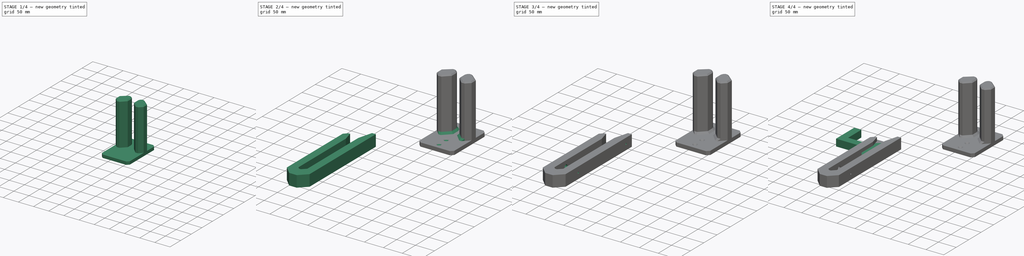
[diagram: build sequence overview — one tinted view per stage of 4, left to right]
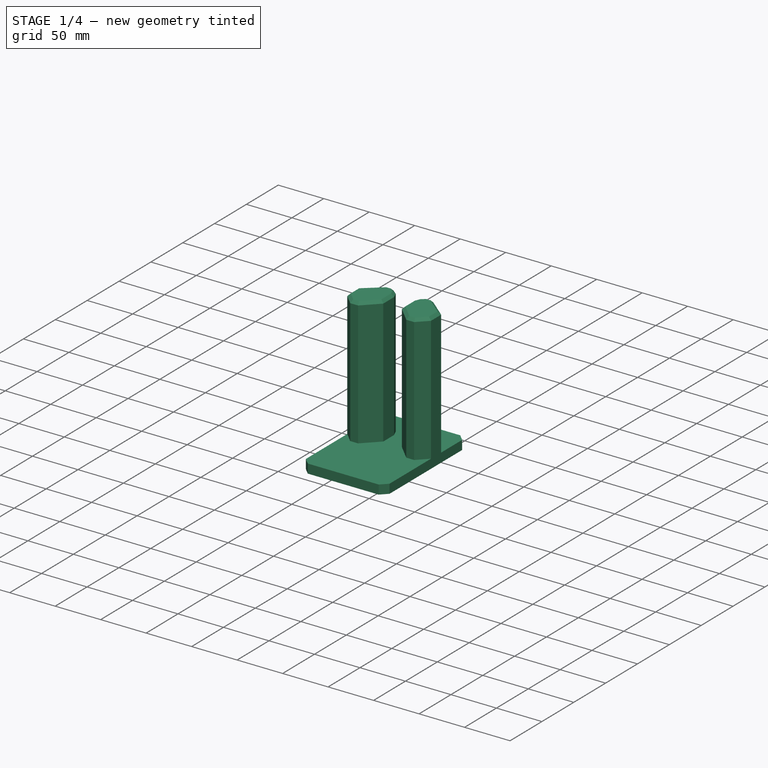
[diagram: stage 1 of 4 — iso view after this stage's code; geometry added in this stage tinted green]
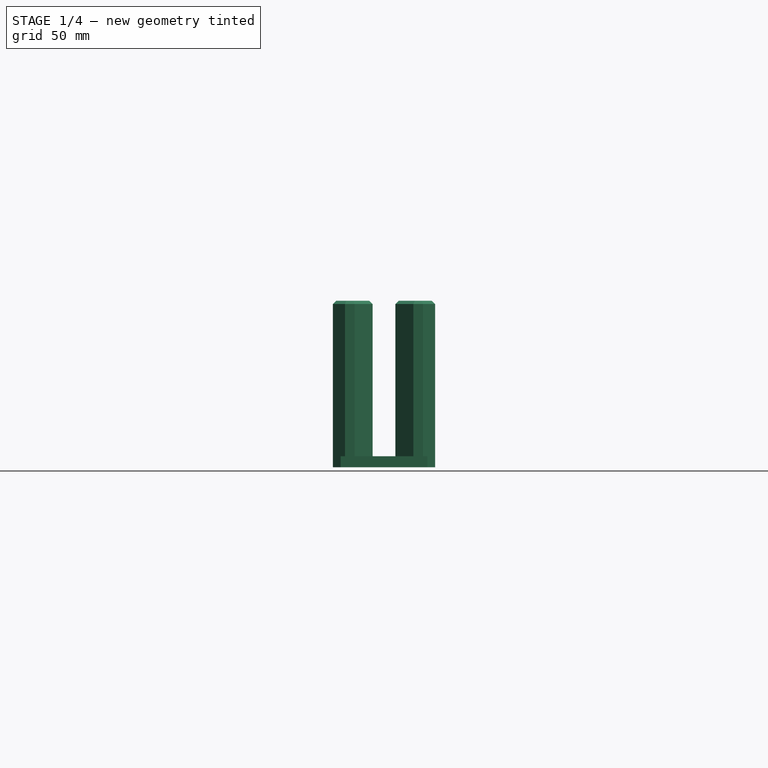
[diagram: stage 1 of 4 — front view after this stage's code; geometry added in this stage tinted green]
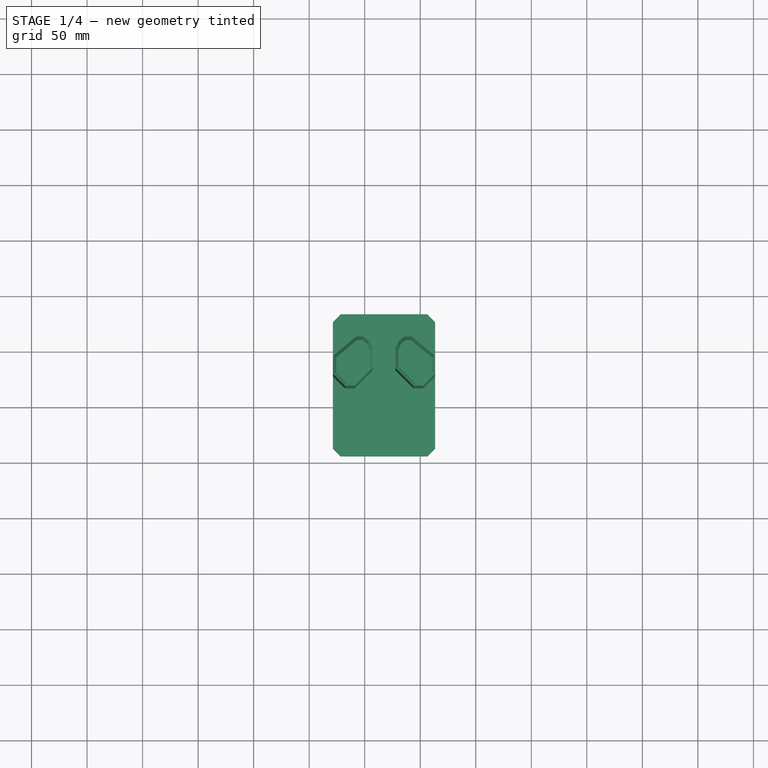
[diagram: stage 1 of 4 — top view after this stage's code; geometry added in this stage tinted green]
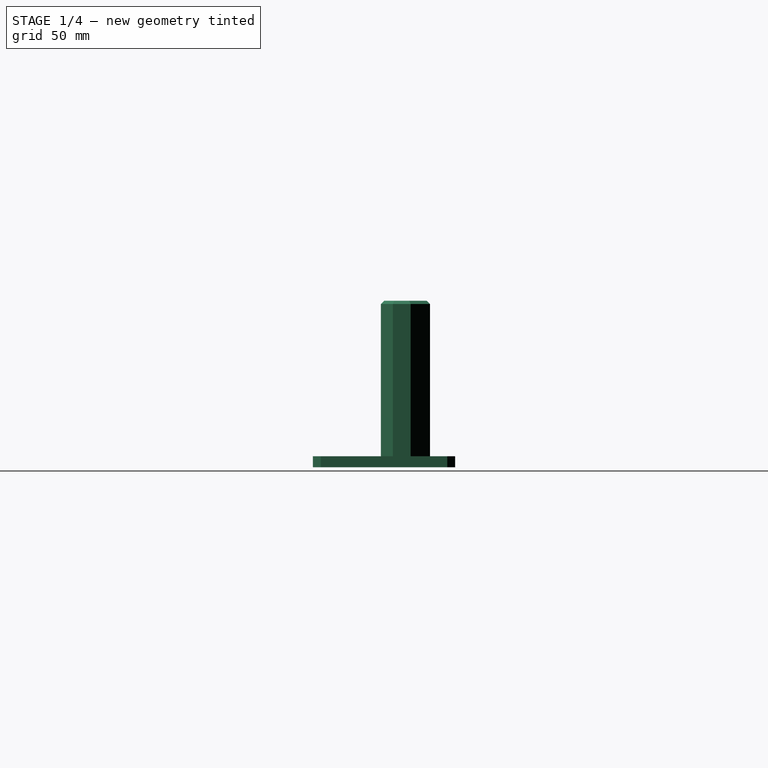
[diagram: stage 1 of 4 — right view after this stage's code; geometry added in this stage tinted green]
FCSTD DOCUMENT  (FreeCAD 0.19R24267 +99 (Git))
Label: garage_hooks
License: All rights reserved
LicenseURL: http://en.wikipedia.org/wiki/All_rights_reserved
objects: Sketcher::SketchObject×10, PartDesign::Plane×7, PartDesign::Hole×6, PartDesign::Pad×4, PartDesign::Chamfer×4, PartDesign::Body×3
note: 48 computed .brp shape members not serialized (recipe doc carries the construction recipe); baked Part::Feature solids carry a one-line shape summary decoded from their .brp

FEATURE [PartDesign::Body] Body001  label="Board_hook"
  Group = -> [Sketch003,Pad001,DatumPlane002,Sketch004,Hole002,DatumPlane003,Sketch005,Hole003,DatumPlane004,Sketch006,Hole004]
  Origin = -> Origin001
  Tip = -> Hole004
FEATURE [Sketcher::SketchObject] Sketch007
  FullyConstrained = true
  MapMode = 5
  Support = -> [XY_Plane002]
  sketch-geometry (4):
    g0: LineSegment StartX=71.38 StartY=183.99 StartZ=0 EndX=163.38 EndY=183.99 EndZ=0
    g1: LineSegment StartX=163.38 StartY=183.99 StartZ=0 EndX=163.38 EndY=55.99 EndZ=0
    g2: LineSegment StartX=163.38 StartY=55.99 StartZ=0 EndX=71.38 EndY=55.99 EndZ=0
    g3: LineSegment StartX=71.38 StartY=55.99 StartZ=0 EndX=71.38 EndY=183.99 EndZ=0
  constraints (12):
    c: Coincident(g0,g1)
    c: Coincident(g1,g2)
    c: Coincident(g2,g3)
    c: Coincident(g3,g0)
    c: Horizontal(g0)
    c: Horizontal(g2)
    c: Vertical(g1)
    c: Vertical(g3)
    c: DistanceX(g0,g0) = 92
    c: DistanceY(g1,g1) = 128
    c: DistanceX(g-1,g2) = 71.38
    c: DistanceY(g-1,g2) = 55.99
FEATURE [PartDesign::Pad] Pad002  label="Ski_hanger_baseplate"
  Direction = (1,1,1)
  Length = 10
  Length2 = 100
  Profile = -> Sketch007
  Type = 0
FEATURE [PartDesign::Chamfer] Chamfer001
  Angle = 45
  Base = -> Pad002 [Edge1,Edge2,Edge8,Edge5]
  BaseFeature = -> Pad002
  ChamferType = 0
  FlipDirection = false
  Size = 7
  Size2 = 1
  SupportTransform = false
FEATURE [PartDesign::Plane] DatumPlane005
  Length = 228.064
  MapMode = 5
  Placement = pos=(0,0,10) rot=(0,0,1;0rad)
  ResizeMode = 0
  Support = -> [Chamfer001]
  Width = 248.674
FEATURE [Sketcher::SketchObject] Sketch008
  FullyConstrained = true
  MapMode = 5
  Placement = pos=(0,0,10) rot=(0,0,1;0rad)
  Support = -> [DatumPlane005]
  sketch-geometry (18):
    g0: LineSegment StartX=71.38 StartY=128 StartZ=0 EndX=71.38 EndY=144 EndZ=0
    g1: LineSegment StartX=71.38 StartY=144 StartZ=0 EndX=92.0632 EndY=161.355 EndZ=0
    g2: LineSegment StartX=92.0632 StartY=161.355 StartZ=0 EndX=99.0632 EndY=161.355 EndZ=0
    g3: LineSegment StartX=99.0632 StartY=161.355 StartZ=0 EndX=104.426 EndY=156.856 EndZ=0
    g4: LineSegment StartX=104.426 StartY=156.856 StartZ=0 EndX=107.161 EndY=150.412 EndZ=0
    g5: LineSegment StartX=107.161 StartY=150.412 StartZ=0 EndX=107.161 EndY=133.412 EndZ=0
    g6: LineSegment StartX=107.161 StartY=133.412 StartZ=0 EndX=90.8972 EndY=117.149 EndZ=0
    g7: LineSegment StartX=90.8972 StartY=117.149 StartZ=0 EndX=82.2312 EndY=117.149 EndZ=0
    g8: LineSegment StartX=71.38 StartY=128 StartZ=0 EndX=82.2312 EndY=117.149 EndZ=0
    g9: LineSegment StartX=163.38 StartY=128 StartZ=0 EndX=163.38 EndY=144 EndZ=0
    g10: LineSegment StartX=163.38 StartY=144 StartZ=0 EndX=142.697 EndY=161.355 EndZ=0
    g11: LineSegment StartX=142.697 StartY=161.355 StartZ=0 EndX=135.697 EndY=161.355 EndZ=0
    g12: LineSegment StartX=135.697 StartY=161.355 StartZ=0 EndX=130.334 EndY=156.856 EndZ=0
    g13: LineSegment StartX=130.334 StartY=156.856 StartZ=0 EndX=127.599 EndY=150.412 EndZ=0
    g14: LineSegment StartX=127.599 StartY=150.412 StartZ=0 EndX=127.599 EndY=133.412 EndZ=0
    g15: LineSegment StartX=127.599 StartY=133.412 StartZ=0 EndX=143.863 EndY=117.149 EndZ=0
    g16: LineSegment StartX=143.863 StartY=117.149 StartZ=0 EndX=152.529 EndY=117.149 EndZ=0
    g17: LineSegment StartX=152.529 StartY=117.149 StartZ=0 EndX=163.38 EndY=128 EndZ=0
  constraints (54):
    c: Vertical(g0)
    c: Coincident(g1,g0)
    c: Angle(g0,g1) = 2.26893
    c: DistanceX(g-1,g0) = 71.38
    c: DistanceY(g-1,g0) = 128
    c: DistanceY(g0,g0) = 16
    c: Coincident(g2,g1)
    c: Horizontal(g2)
    c: Distance(g1) = 27
    c: Distance(g2) = 7
    c: Coincident(g3,g2)
    c: Angle(g2,g3) = 2.44346
    c: Distance(g3) = 7
    c: Coincident(g4,g3)
    c: Distance(g4) = 7
    c: Angle(g3,g4) = 2.67035
    c: Coincident(g5,g4)
    c: Vertical(g5)
    c: Distance(g5) = 17
    c: Coincident(g6,g5)
    c: Distance(g6) = 23
    c: Angle(g5,g6) = 2.35619
    c: Coincident(g7,g6)
    c: Horizontal(g7)
    c: Coincident(g8,g0)
    c: Coincident(g8,g7)
    c: Angle(g8,g0) = 2.35619
    c: Vertical(g9)
    c: DistanceY(g-1,g9) = 128
    c: Distance(g9) = 16
    c: DistanceX(g0,g9) = 92
    c: Coincident(g10,g9)
    c: Coincident(g11,g10)
    c: Horizontal(g11)
    c: Coincident(g12,g11)
    c: Coincident(g13,g12)
    c: Coincident(g14,g13)
    c: Vertical(g14)
    c: Coincident(g15,g14)
    c: Coincident(g16,g15)
    c: Horizontal(g16)
    c: Coincident(g17,g16)
    c: Coincident(g17,g9)
    c: Angle(g10,g9) = 2.26893
    c: Distance(g10) = 27
    c: Distance(g11) = 7
    c: Distance(g12) = 7
    c: Distance(g13) = 7
    c: Angle(g12,g11) = 2.44346
    c: Angle(g13,g12) = 2.67035
    c: Distance(g14) = 17
    c: Angle(g15,g14) = 2.35619
    c: Angle(g9,g17) = 2.35619
    c: Distance(g15) = 23
FEATURE [PartDesign::Pad] Pad003  label="Ski_hanger_grips"
  BaseFeature = -> Chamfer001
  Direction = (1,1,1)
  Length = 140
  Length2 = 100
  Profile = -> Sketch008
  Type = 0
FEATURE [PartDesign::Chamfer] Chamfer002
  Angle = 45
  Base = -> Pad003 [Edge47,Edge49,Edge51,Edge53,Edge55,Edge57,Edge59,Edge61,Edge79,Edge76,Edge78,Edge80,Edge64,Edge66,Edge68,Edge70,Edge72,Edge74]
  BaseFeature = -> Pad003
  ChamferType = 0
  FlipDirection = false
  Size = 3
  Size2 = 1
  SupportTransform = false
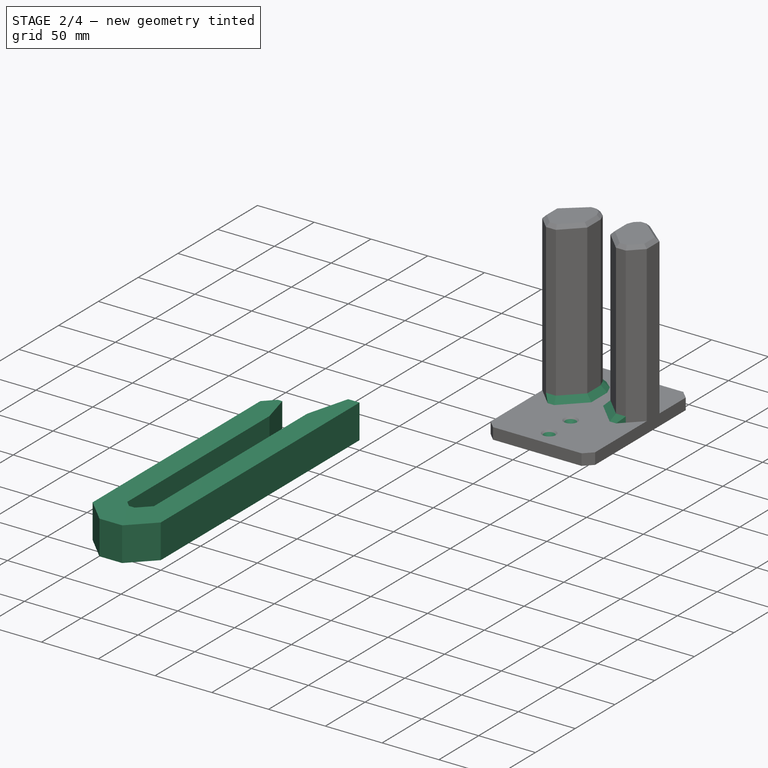
[diagram: stage 2 of 4 — iso view after this stage's code; geometry added in this stage tinted green]
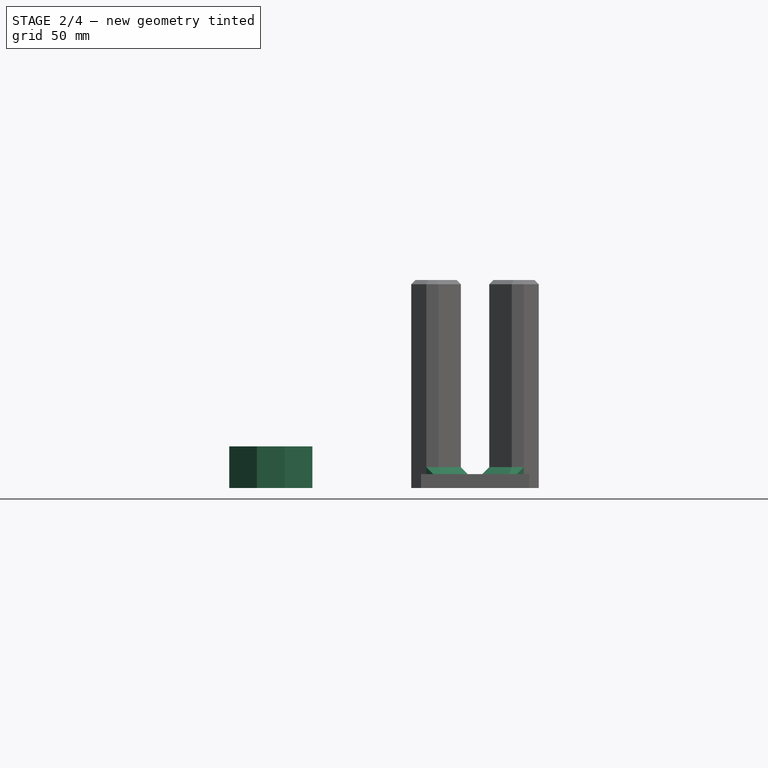
[diagram: stage 2 of 4 — front view after this stage's code; geometry added in this stage tinted green]
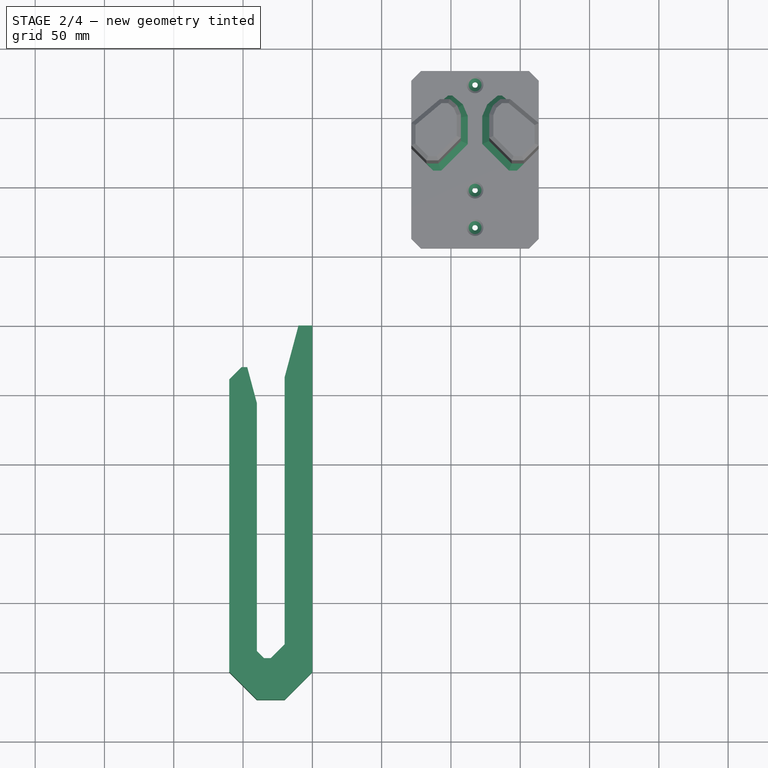
[diagram: stage 2 of 4 — top view after this stage's code; geometry added in this stage tinted green]
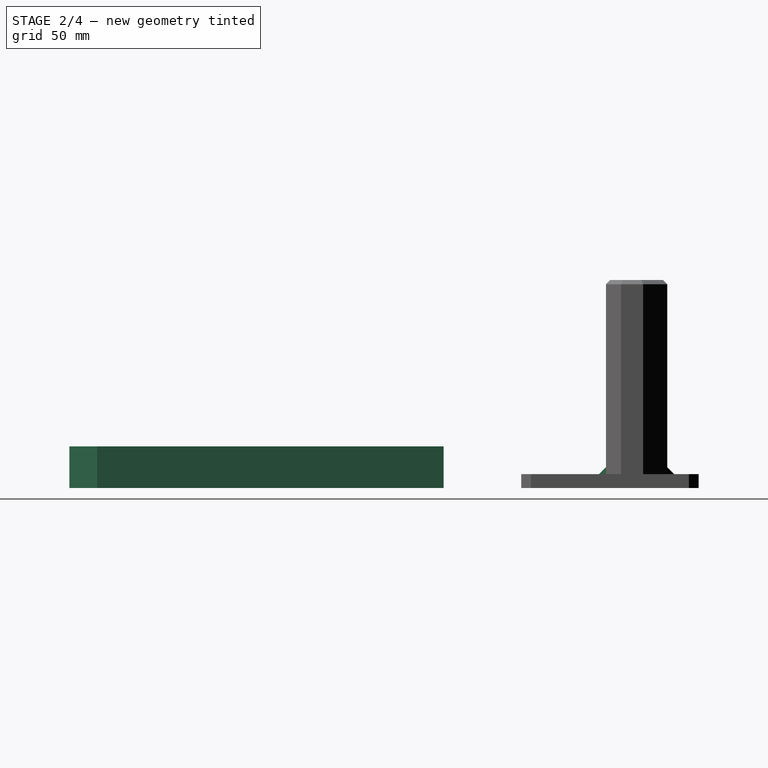
[diagram: stage 2 of 4 — right view after this stage's code; geometry added in this stage tinted green]
FEATURE [PartDesign::Body] Body  label="Ladder_hook"
  Group = -> [Sketch,Pad,DatumPlane,Sketch001,Hole,DatumPlane001,Sketch002,Hole001,Chamfer]
  Origin = -> Origin
  Tip = -> Chamfer
FEATURE [Sketcher::SketchObject] Sketch003
  FullyConstrained = true
  MapMode = 5
  Support = -> [XY_Plane001]
  sketch-geometry (15):
    g0: LineSegment StartX=-10 StartY=0 StartZ=0 EndX=0 EndY=0 EndZ=0
    g1: LineSegment StartX=0 StartY=0 StartZ=0 EndX=0 EndY=-250 EndZ=0
    g2: LineSegment StartX=-20 StartY=-230 StartZ=0 EndX=-20 EndY=-37.3205 EndZ=0
    g3: LineSegment StartX=-20 StartY=-270 StartZ=0 EndX=-40 EndY=-270 EndZ=0
    g4: LineSegment StartX=-51 StartY=-30 StartZ=0 EndX=-47 EndY=-30 EndZ=0
    g5: LineSegment StartX=-40 StartY=-56.1244 StartZ=0 EndX=-40 EndY=-235 EndZ=0
    g6: LineSegment StartX=-60 StartY=-250 StartZ=0 EndX=-60 EndY=-39 EndZ=0
    g7: LineSegment StartX=-40 StartY=-235 StartZ=0 EndX=-35 EndY=-240 EndZ=0
    g8: LineSegment StartX=-30 StartY=-240 StartZ=0 EndX=-20 EndY=-230 EndZ=0
    g9: LineSegment StartX=-20 StartY=-270 StartZ=0 EndX=0 EndY=-250 EndZ=0
    g10: LineSegment StartX=-60 StartY=-250 StartZ=0 EndX=-40 EndY=-270 EndZ=0
    g11: LineSegment StartX=-40 StartY=-56.1244 StartZ=0 EndX=-47 EndY=-30 EndZ=0
    g12: LineSegment StartX=-60 StartY=-39 StartZ=0 EndX=-51 EndY=-30 EndZ=0
    g13: LineSegment StartX=-20 StartY=-37.3205 StartZ=0 EndX=-10 EndY=0 EndZ=0
    g14: LineSegment StartX=-35 StartY=-240 StartZ=0 EndX=-30 EndY=-240 EndZ=0
  constraints (44):
    c: Coincident(g0,g1)
    c: Horizontal(g0)
    c: Vertical(g1)
    c: Vertical(g2)
    c: Horizontal(g3)
    c: Horizontal(g4)
    c: Vertical(g5)
    c: Vertical(g6)
    c: Coincident(g7,g5)
    c: Coincident(g8,g2)
    c: Coincident(g9,g3)
    c: Coincident(g9,g1)
    c: Coincident(g10,g6)
    c: Coincident(g10,g3)
    c: Coincident(g11,g5)
    c: Coincident(g11,g4)
    c: Coincident(g12,g6)
    c: Coincident(g12,g4)
    c: Coincident(g13,g2)
    c: Coincident(g13,g0)
    c: Angle(g2,g8) = 2.35619
    c: Angle(g7,g5) = 2.35619
    c: Coincident(g14,g7)
    c: Coincident(g14,g8)
    c: Angle(g1,g9) = 2.35619
    c: Angle(g10,g6) = 2.35619
    c: Angle(g6,g12) = 2.35619
    c: Angle(g11,g5) = 2.87979
    c: Angle(g2,g13) = 2.87979
    c: DistanceY(g1,g1) = 250
    c: DistanceY(g9,g9) = 20
    c: Distance(g2,g1) = 20
    c: Distance(g5,g6) = 20
    c: DistanceX(g12,g12) = 9
    c: DistanceX(g11,g11) = 7
    c: DistanceX(g13,g13) = 10
    c: Horizontal(g14)
    c: DistanceY(g10,g10) = 20
    c: DistanceX(g5,g2) = 20
    c: DistanceY(g8,g8) = 10
    c: DistanceY(g7,g7) = 5
    c: Coincident(g0,g-1)
    c: Distance(g8,g3) = 30
    c: Distance(g6,g4) = 220
FEATURE [PartDesign::Pad] Pad001  label="Board_hook_pad"
  Direction = (1,1,1)
  Length = 30
  Length2 = 100
  Profile = -> Sketch003
  Type = 0
FEATURE [PartDesign::Chamfer] Chamfer003
  Angle = 45
  Base = -> Chamfer002 [Edge18,Edge17,Edge27,Edge26,Edge16,Edge28,Edge13,Edge14,Edge29,Edge30,Edge31,Edge15]
  BaseFeature = -> Chamfer002
  ChamferType = 0
  FlipDirection = false
  Size = 5
  Size2 = 1
  SupportTransform = false
FEATURE [PartDesign::Plane] DatumPlane006
  Length = 228.064
  MapMode = 5
  Placement = pos=(0,0,10) rot=(0,0,1;0rad)
  ResizeMode = 0
  Support = -> [Chamfer001]
  Width = 248.674
FEATURE [Sketcher::SketchObject] Sketch009
  FullyConstrained = true
  MapMode = 5
  Placement = pos=(0,0,10) rot=(0,0,1;0rad)
  Support = -> [DatumPlane006]
  expr: Constraints[1] = 117.38mm
  sketch-geometry (3):
    g0: Circle CenterX=117.38 CenterY=174 CenterZ=0 NormalX=0 NormalY=0 NormalZ=1 AngleXU=0 Radius=3
    g1: Circle CenterX=117.38 CenterY=98 CenterZ=0 NormalX=0 NormalY=0 NormalZ=1 AngleXU=0 Radius=3
    g2: Circle CenterX=117.38 CenterY=71 CenterZ=0 NormalX=0 NormalY=0 NormalZ=1 AngleXU=0 Radius=3
  constraints (9):
    c: DistanceX(g-1,g2) = 117.38
    c: DistanceX(g-1,g1) = 117.38
    c: DistanceX(g-1,g0) = 117.38
    c: DistanceY(g-1,g2) = 71
    c: DistanceY(g-1,g1) = 98
    c: DistanceY(g-1,g0) = 174
    c: Radius(g2) = 3
    c: Radius(g1) = 3
    c: Radius(g0) = 3
FEATURE [PartDesign::Hole] Hole005
  BaseFeature = -> Chamfer003
  Depth = 25
  DepthType = 0
  Diameter = 4
  DrillForDepth = false
  DrillPoint = 1
  DrillPointAngle = 118
  HoleCutCountersinkAngle = 90
  HoleCutCustomValues = false
  HoleCutDepth = 6
  HoleCutDiameter = 12
  HoleCutType = 2
  ModelActualThread = false
  Profile = -> Sketch009
  Tapered = false
  TaperedAngle = 90
  ThreadAngle = 0
  ThreadClass = 0
  ThreadCutOffInner = 0
  ThreadCutOffOuter = 0
  ThreadDirection = 0
  ThreadFit = 0
  ThreadPitch = 0
  ThreadSize = 0
  ThreadType = 0
  Threaded = false
FEATURE [PartDesign::Body] Body002  label="Ski_hanger"
  Group = -> [Sketch007,Pad002,Chamfer001,DatumPlane005,Sketch008,Pad003,Chamfer002,Chamfer003,DatumPlane006,Sketch009,Hole005]
  Origin = -> Origin002
  Tip = -> Hole005
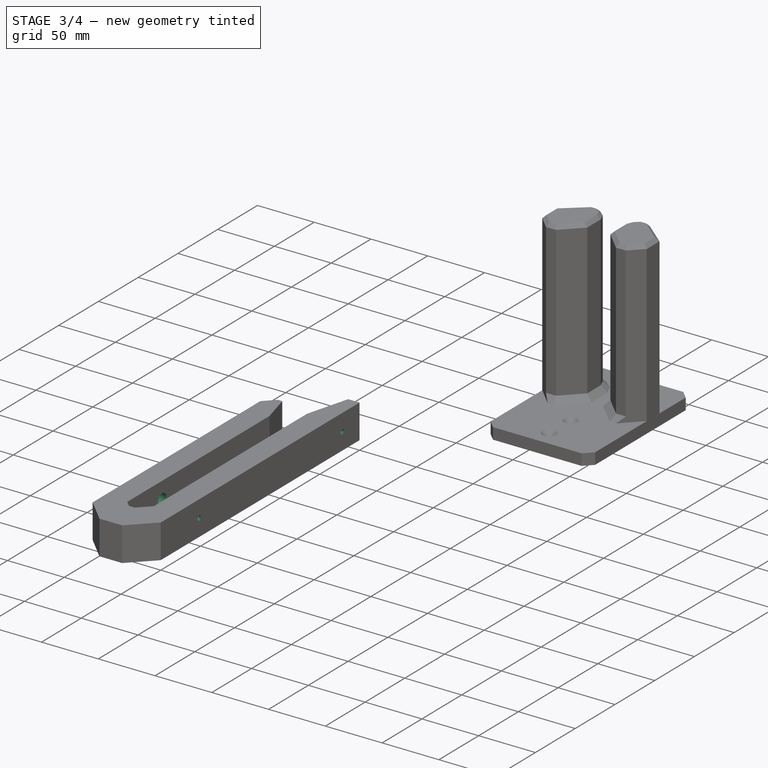
[diagram: stage 3 of 4 — iso view after this stage's code; geometry added in this stage tinted green]
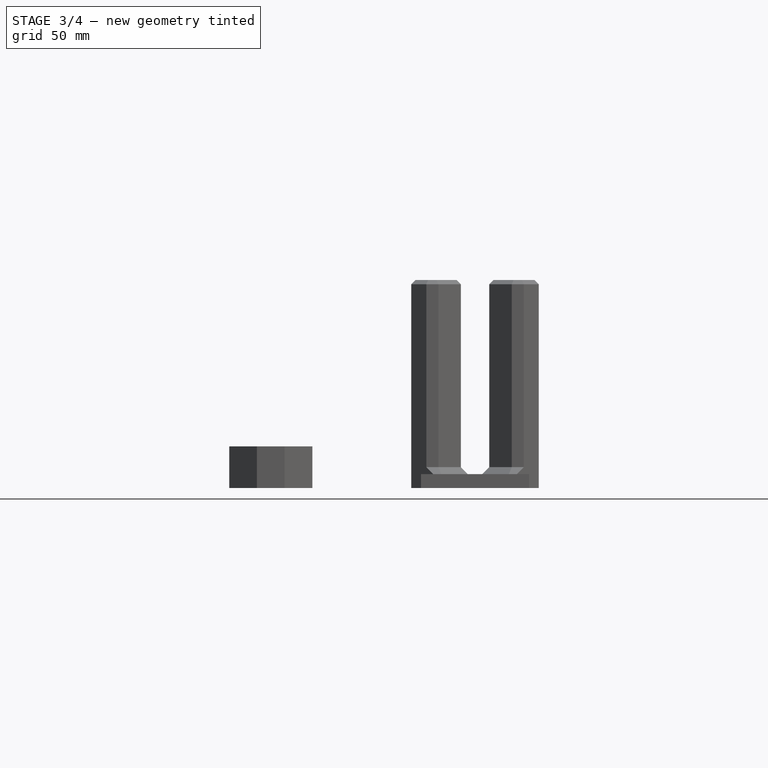
[diagram: stage 3 of 4 — front view after this stage's code; geometry added in this stage tinted green]
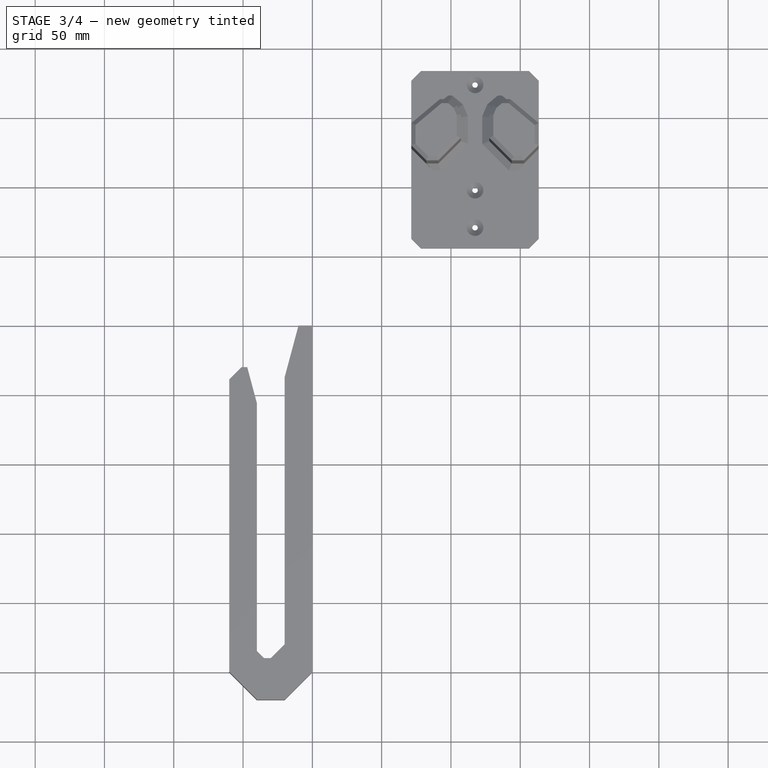
[diagram: stage 3 of 4 — top view after this stage's code; geometry added in this stage tinted green]
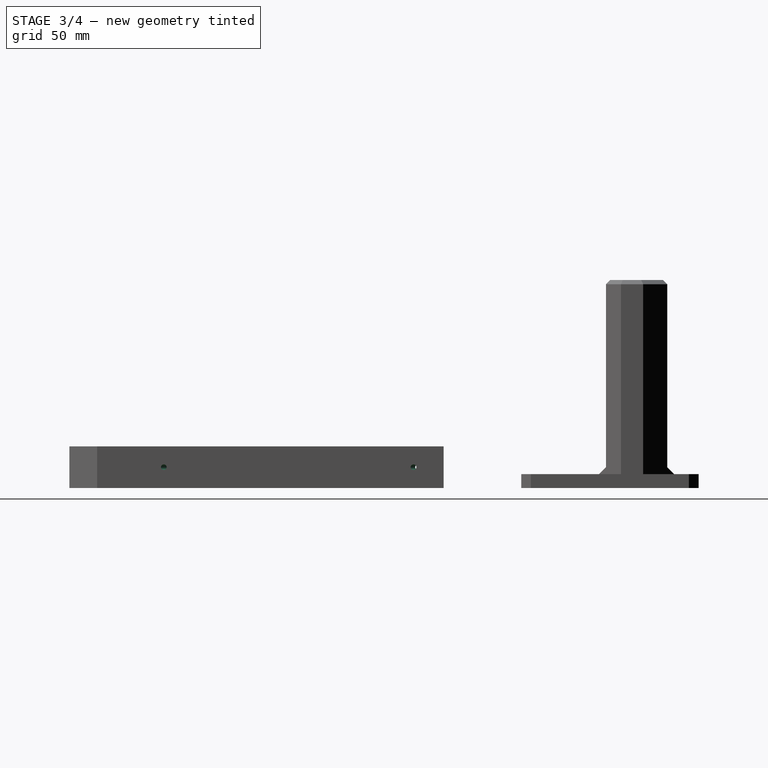
[diagram: stage 3 of 4 — right view after this stage's code; geometry added in this stage tinted green]
FEATURE [PartDesign::Plane] DatumPlane002
  Length = 332.934
  MapMode = 5
  Placement = pos=(-9.33013,2.5,0) rot=(-0.476905,0.621515,0.621515;4.0316rad)
  ResizeMode = 0
  Support = -> [Pad001]
  Width = 80.9862
FEATURE [Sketcher::SketchObject] Sketch004
  FullyConstrained = true
  MapMode = 5
  Placement = pos=(-9.33013,2.5,0) rot=(-0.476905,0.621515,0.621515;4.0316rad)
  Support = -> [DatumPlane002]
  sketch-geometry (1):
    g0: Circle CenterX=21 CenterY=15 CenterZ=0 NormalX=0 NormalY=0 NormalZ=1 AngleXU=0 Radius=2
  constraints (3):
    c: DistanceX(g-1,g0) = 21
    c: DistanceY(g-1,g0) = 15
    c: Radius(g0) = 2
FEATURE [PartDesign::Hole] Hole002  label="Top_screwhole"
  BaseFeature = -> Pad001
  Depth = 25
  DepthType = 0
  Diameter = 4
  DrillForDepth = false
  DrillPoint = 1
  DrillPointAngle = 118
  HoleCutCountersinkAngle = 90
  HoleCutCustomValues = false
  HoleCutDepth = 6
  HoleCutDiameter = 10
  HoleCutType = 2
  ModelActualThread = false
  Profile = -> Sketch004
  Tapered = false
  TaperedAngle = 90
  ThreadAngle = 0
  ThreadClass = 0
  ThreadCutOffInner = 0
  ThreadCutOffOuter = 0
  ThreadDirection = 0
  ThreadFit = 0
  ThreadPitch = 0
  ThreadSize = 0
  ThreadType = 0
  Threaded = false
FEATURE [PartDesign::Plane] DatumPlane003
  AttachmentOffset = pos=(0,0,-35) rot=(0,0,1;0rad)
  Length = 332.934
  MapMode = 5
  Placement = pos=(24.4773,-6.55867,0) rot=(-0.476905,0.621515,0.621515;4.0316rad)
  ResizeMode = 0
  Support = -> [Hole002]
  Width = 80.9862
FEATURE [Sketcher::SketchObject] Sketch005
  FullyConstrained = true
  MapMode = 5
  Placement = pos=(24.4773,-6.55867,0) rot=(-0.476905,0.621515,0.621515;4.0316rad)
  Support = -> [DatumPlane003]
  sketch-geometry (2):
    g0: GeomPoint X=195 Y=15 Z=0
    g1: Circle CenterX=195 CenterY=15 CenterZ=0 NormalX=0 NormalY=0 NormalZ=1 AngleXU=0 Radius=2
  constraints (4):
    c: DistanceY(g0) = 15
    c: Coincident(g1,g0)
    c: DistanceX(g-1,g1) = 195
    c: Radius(g1) = 2
FEATURE [PartDesign::Hole] Hole003  label="Bottom_screwhole"
  BaseFeature = -> Hole002
  Depth = 40
  DepthType = 0
  Diameter = 4
  DrillForDepth = false
  DrillPoint = 1
  DrillPointAngle = 118
  HoleCutCountersinkAngle = 90
  HoleCutCustomValues = false
  HoleCutDepth = 10
  HoleCutDiameter = 26.1
  HoleCutType = 2
  ModelActualThread = false
  Profile = -> Sketch005
  Tapered = false
  TaperedAngle = 90
  ThreadAngle = 0
  ThreadClass = 0
  ThreadCutOffInner = 0
  ThreadCutOffOuter = 0
  ThreadDirection = 0
  ThreadFit = 0
  ThreadPitch = 0
  ThreadSize = 0
  ThreadType = 0
  Threaded = false
FEATURE [PartDesign::Plane] DatumPlane004
  AttachmentOffset = pos=(0,0,-35) rot=(0,0,1;0rad)
  Length = 332.934
  MapMode = 5
  Placement = pos=(24.4773,-6.55867,0) rot=(-0.476905,0.621515,0.621515;4.0316rad)
  ResizeMode = 0
  Support = -> [Hole003]
  Width = 80.9862
FEATURE [Sketcher::SketchObject] Sketch006
  FullyConstrained = true
  MapMode = 5
  Placement = pos=(24.4773,-6.55867,0) rot=(-0.476905,0.621515,0.621515;4.0316rad)
  Support = -> [DatumPlane004]
  sketch-geometry (1):
    g0: Circle CenterX=195 CenterY=15 CenterZ=0 NormalX=0 NormalY=0 NormalZ=1 AngleXU=0 Radius=2
  constraints (3):
    c: DistanceX(g-1,g0) = 195
    c: DistanceY(g-1,g0) = 15
    c: Radius(g0) = 2
FEATURE [PartDesign::Hole] Hole004  label="Bottom_screw_accesshole"
  BaseFeature = -> Hole003
  Depth = 100
  DepthType = 0
  Diameter = 10
  DrillForDepth = false
  DrillPoint = 1
  DrillPointAngle = 118
  HoleCutCountersinkAngle = 90
  HoleCutCustomValues = false
  HoleCutDepth = 0
  HoleCutDiameter = 0
  HoleCutType = 0
  ModelActualThread = false
  Profile = -> Sketch006
  Reversed = true
  Tapered = false
  TaperedAngle = 90
  ThreadAngle = 0
  ThreadClass = 0
  ThreadCutOffInner = 0
  ThreadCutOffOuter = 0
  ThreadDirection = 0
  ThreadFit = 0
  ThreadPitch = 0
  ThreadSize = 0
  ThreadType = 0
  Threaded = false
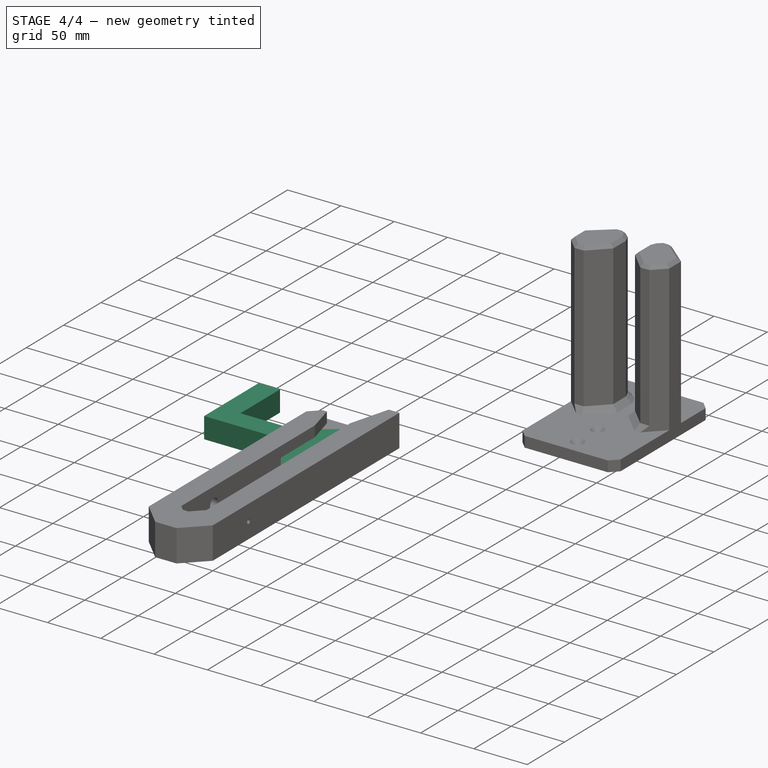
[diagram: stage 4 of 4 — iso view after this stage's code; geometry added in this stage tinted green]
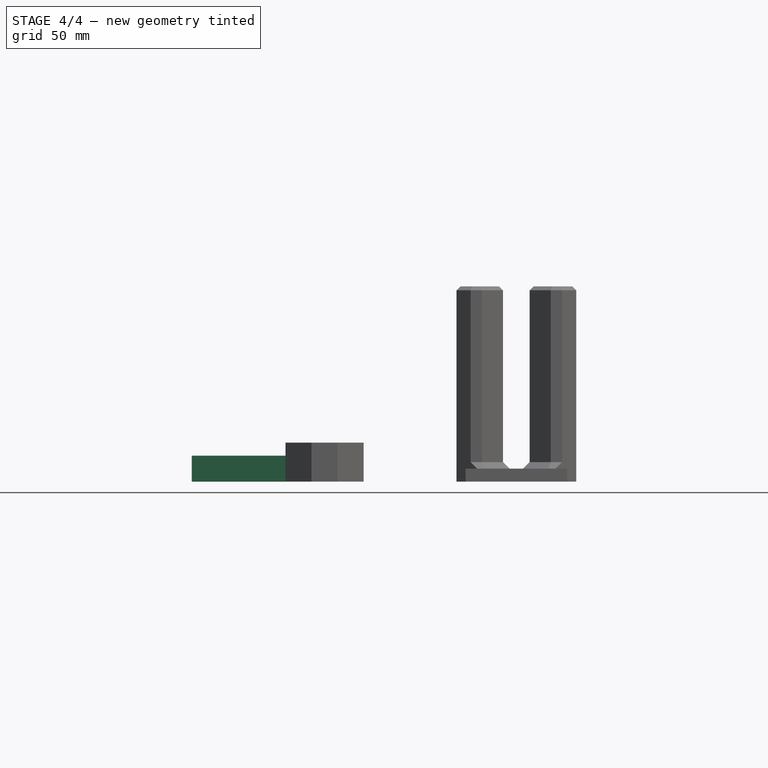
[diagram: stage 4 of 4 — front view after this stage's code; geometry added in this stage tinted green]
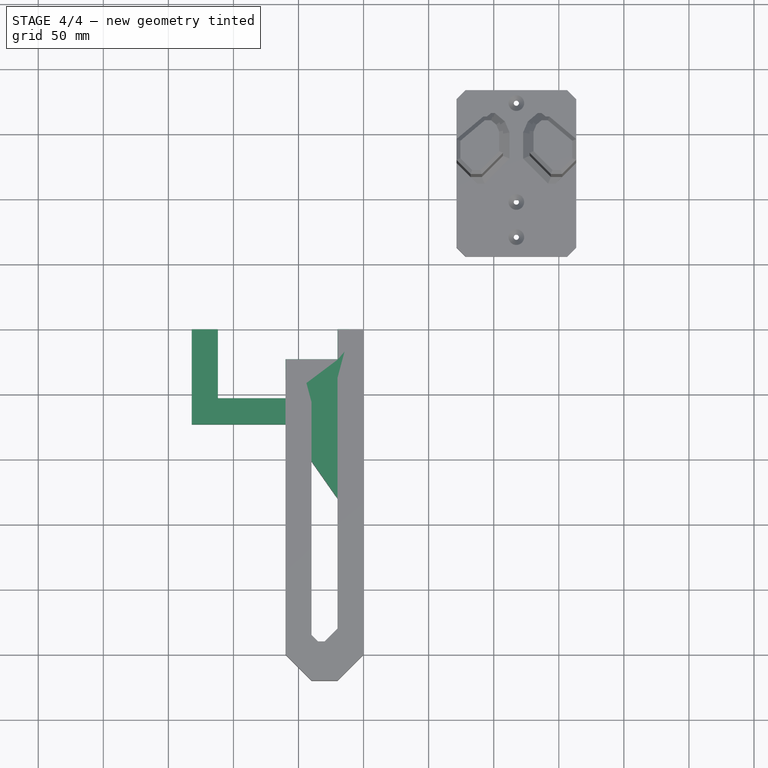
[diagram: stage 4 of 4 — top view after this stage's code; geometry added in this stage tinted green]
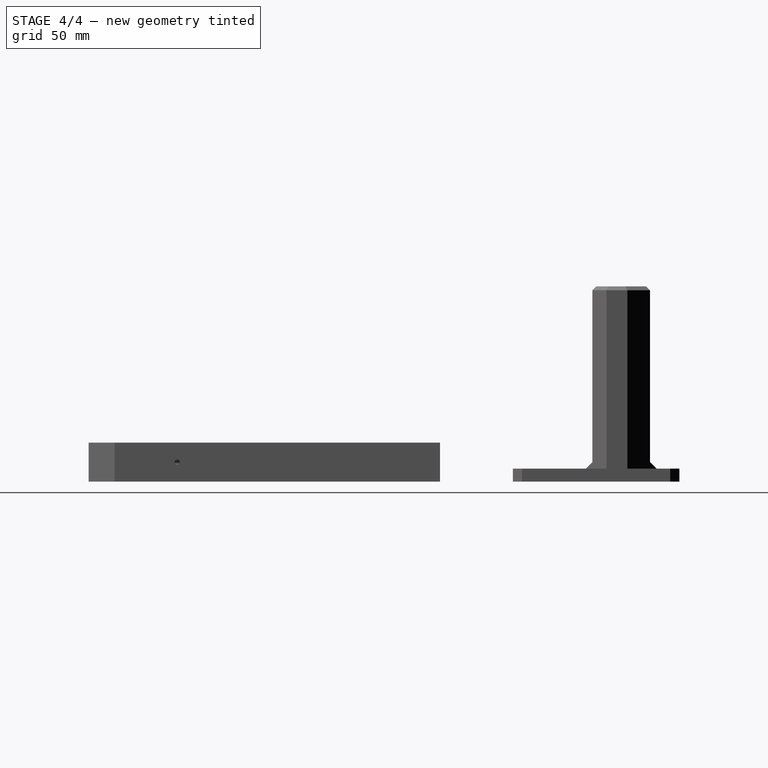
[diagram: stage 4 of 4 — right view after this stage's code; geometry added in this stage tinted green]
FEATURE [Sketcher::SketchObject] Sketch
  FullyConstrained = true
  MapMode = 5
  Support = -> [XY_Plane]
  sketch-geometry (11):
    g0: LineSegment StartX=-112 StartY=0 StartZ=0 EndX=-112 EndY=-53 EndZ=0
    g1: LineSegment StartX=-112 StartY=-53 StartZ=0 EndX=-60 EndY=-53 EndZ=0
    g2: LineSegment StartX=-60 StartY=-53 StartZ=0 EndX=-60 EndY=-23 EndZ=0
    g3: LineSegment StartX=-60 StartY=-23 StartZ=0 EndX=-20 EndY=-23 EndZ=0
    g4: LineSegment StartX=-20 StartY=-23 StartZ=0 EndX=-20 EndY=0 EndZ=0
    g5: LineSegment StartX=-20 StartY=0 StartZ=0 EndX=0 EndY=0 EndZ=0
    g6: LineSegment StartX=0 StartY=0 StartZ=0 EndX=0 EndY=-158.689 EndZ=0
    g7: LineSegment StartX=-60 StartY=-73 StartZ=0 EndX=-132 EndY=-73 EndZ=0
    g8: LineSegment StartX=-132 StartY=-73 StartZ=0 EndX=-132 EndY=0 EndZ=0
    g9: LineSegment StartX=-132 StartY=0 StartZ=0 EndX=-112 EndY=0 EndZ=0
    g10: LineSegment StartX=-60 StartY=-73 StartZ=0 EndX=0 EndY=-158.689 EndZ=0
  constraints (32):
    c: Vertical(g0)
    c: Coincident(g1,g0)
    c: Horizontal(g1)
    c: DistanceX(g1,g1) = 52
    c: Coincident(g2,g1)
    c: Vertical(g2)
    c: Horizontal(g3)
    c: Coincident(g4,g3)
    c: Vertical(g4)
    c: DistanceX(g3,g3) = 40
    c: Coincident(g5,g4)
    c: Horizontal(g5)
    c: Coincident(g6,g5)
    c: Vertical(g6)
    c: Horizontal(g7)
    c: Coincident(g8,g7)
    c: Vertical(g8)
    c: Coincident(g9,g8)
    c: Coincident(g9,g0)
    c: DistanceX(g5,g5) = 20
    c: Horizontal(g9)
    c: DistanceX(g9,g9) = 20
    c: Coincident(g3,g2)
    c: DistanceY(g4,g4) = 23
    c: DistanceY(g2,g2) = 30
    c: DistanceY(g8,g8) = 73
    c: DistanceX(g7,g7) = 72
    c: Coincident(g10,g7)
    c: Coincident(g10,g6)
    c: Angle(g7,g10) = 2.18166
    c: DistanceY(g0,g0) = 53
    c: Coincident(g5,g-1)
FEATURE [PartDesign::Pad] Pad
  Direction = (1,1,1)
  Length = 20
  Length2 = 100
  Profile = -> Sketch
  Type = 0
FEATURE [PartDesign::Plane] DatumPlane
  AttachmentOffset = pos=(0,0,0) rot=(0,-1,0;0.261799rad)
  Length = 238.948
  MapMode = 5
  Placement = pos=(-20,0,0) rot=(0.476905,-0.621515,-0.621515;2.25159rad)
  ResizeMode = 0
  Support = -> [Pad]
  Width = 70.8837
FEATURE [Sketcher::SketchObject] Sketch001
  FullyConstrained = true
  MapMode = 5
  Placement = pos=(-20,-9e-16,0) rot=(-0.476905,0.621515,0.621515;4.0316rad)
  Support = -> [DatumPlane]
  sketch-geometry (1):
    g0: Circle CenterX=10 CenterY=10 CenterZ=0 NormalX=0 NormalY=0 NormalZ=1 AngleXU=0 Radius=2
  constraints (3):
    c: DistanceX(g-1,g0) = 10
    c: DistanceY(g-1,g0) = 10
    c: Radius(g0) = 2
FEATURE [PartDesign::Hole] Hole
  BaseFeature = -> Pad
  Depth = 25
  DepthType = 0
  Diameter = 4
  DrillForDepth = false
  DrillPoint = 1
  DrillPointAngle = 118
  HoleCutCountersinkAngle = 90
  HoleCutCustomValues = false
  HoleCutDepth = 17
  HoleCutDiameter = 22.53
  HoleCutType = 2
  ModelActualThread = false
  Profile = -> Sketch001
  Tapered = false
  TaperedAngle = 90
  ThreadAngle = 0
  ThreadClass = 0
  ThreadCutOffInner = 0
  ThreadCutOffOuter = 0
  ThreadDirection = 0
  ThreadFit = 0
  ThreadPitch = 0
  ThreadSize = 0
  ThreadType = 0
  Threaded = false
FEATURE [PartDesign::Plane] DatumPlane001
  AttachmentOffset = pos=(0,0,-65) rot=(0,-1,0;0.610865rad)
  Length = 202.856
  MapMode = 5
  Placement = pos=(-21.3145,-14.9246,-1.08e-14) rot=(0.57735,-0.57735,-0.57735;2.0944rad)
  ResizeMode = 0
  Support = -> [Hole]
  Width = 69.1671
FEATURE [Sketcher::SketchObject] Sketch002
  FullyConstrained = true
  MapMode = 5
  Placement = pos=(-21.3145,-14.9246,-1.08e-14) rot=(0.57735,-0.57735,-0.57735;2.0944rad)
  Support = -> [DatumPlane001]
  sketch-geometry (1):
    g0: Circle CenterX=123.43 CenterY=10 CenterZ=0 NormalX=0 NormalY=0 NormalZ=1 AngleXU=0 Radius=3
  constraints (3):
    c: Distance(g0,g-1) = 10
    c: Distance(g0,g-2) = 123.43
    c: Radius(g0) = 3
FEATURE [PartDesign::Hole] Hole001
  BaseFeature = -> Hole
  Depth = 25
  DepthType = 0
  Diameter = 4
  DrillForDepth = false
  DrillPoint = 1
  DrillPointAngle = 118
  HoleCutCountersinkAngle = 90
  HoleCutCustomValues = false
  HoleCutDepth = 11
  HoleCutDiameter = 28.1
  HoleCutType = 2
  ModelActualThread = false
  Profile = -> Sketch002
  Tapered = false
  TaperedAngle = 90
  ThreadAngle = 0
  ThreadClass = 0
  ThreadCutOffInner = 0
  ThreadCutOffOuter = 0
  ThreadDirection = 0
  ThreadFit = 0
  ThreadPitch = 0
  ThreadSize = 0
  ThreadType = 0
  Threaded = false
FEATURE [PartDesign::Chamfer] Chamfer
  Angle = 45
  Base = -> Hole001 [Edge16,Edge15,Edge12,Edge14,Edge3,Edge5,Edge21,Edge20,Edge18,Edge19,Edge17,Edge29,Edge26,Edge27,Edge28,Edge6,Edge4,Edge24,Edge23,Edge13,Edge25,Edge22]
  BaseFeature = -> Hole001
  ChamferType = 0
  FlipDirection = false
  Size = 0.2
  Size2 = 1
  SupportTransform = false
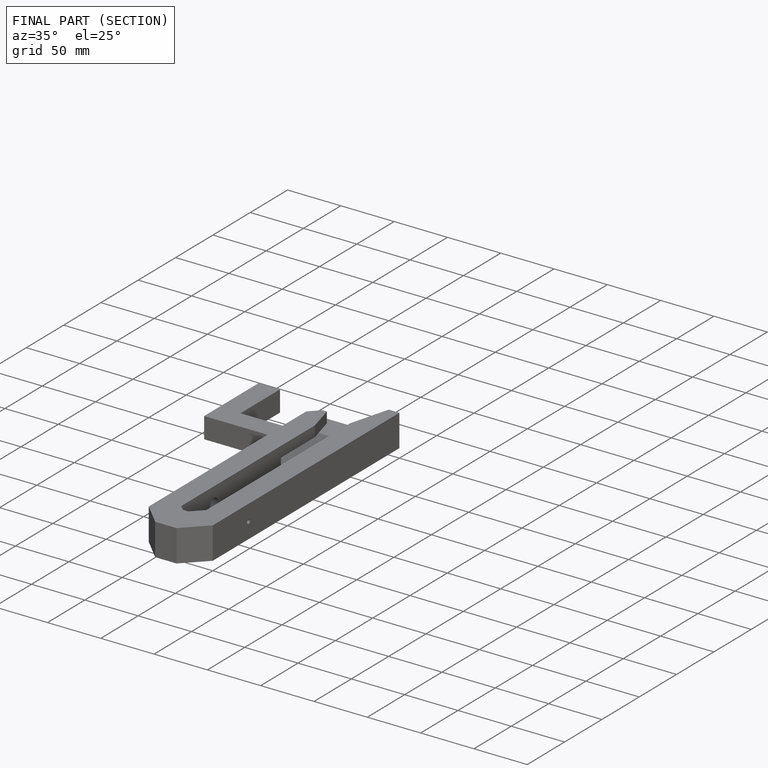
[diagram: finished part — half-section view (interior)]
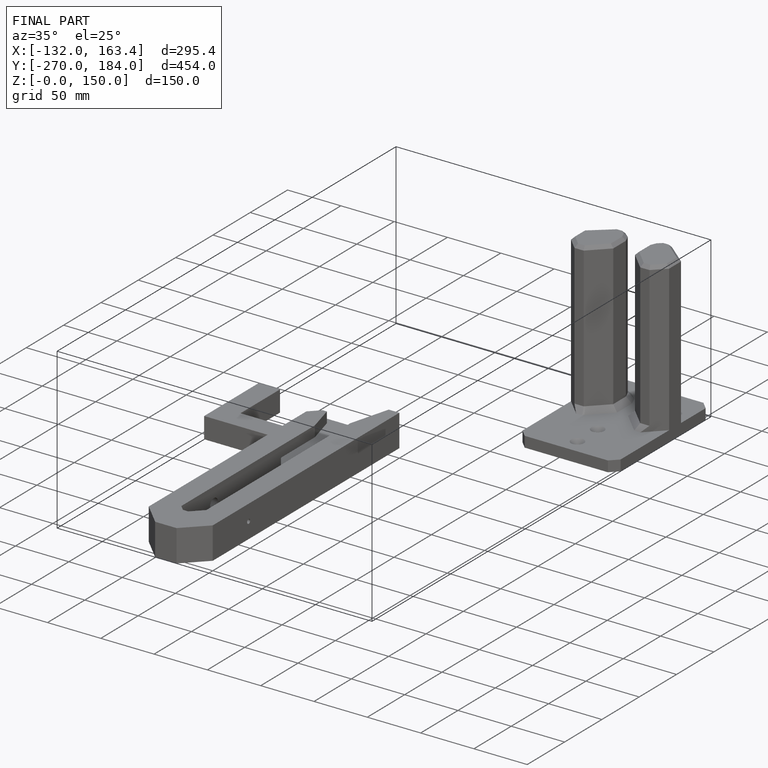
[diagram: finished part — iso view with bounding-box wireframe]
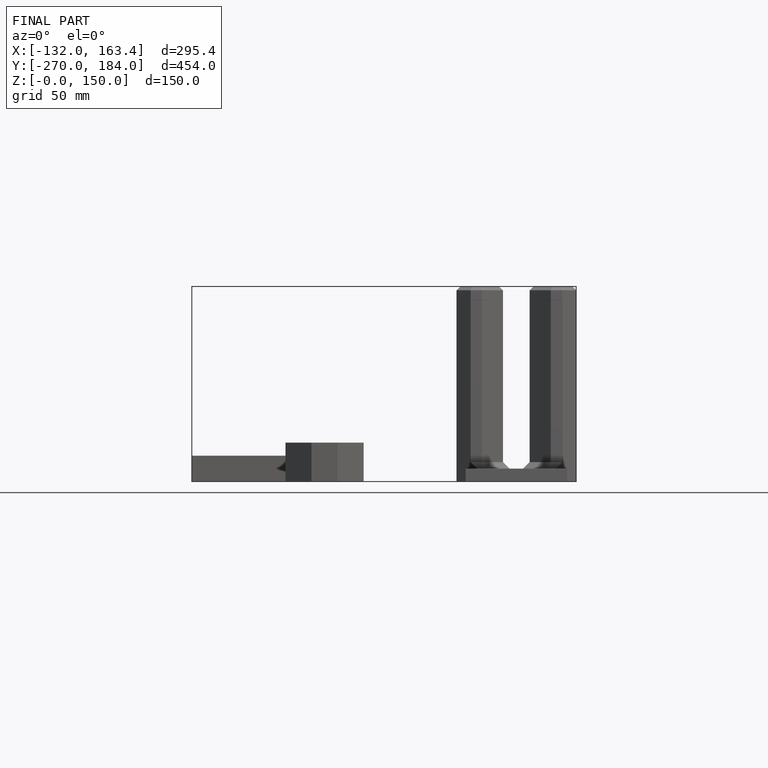
[diagram: finished part — front view with bounding-box wireframe]
